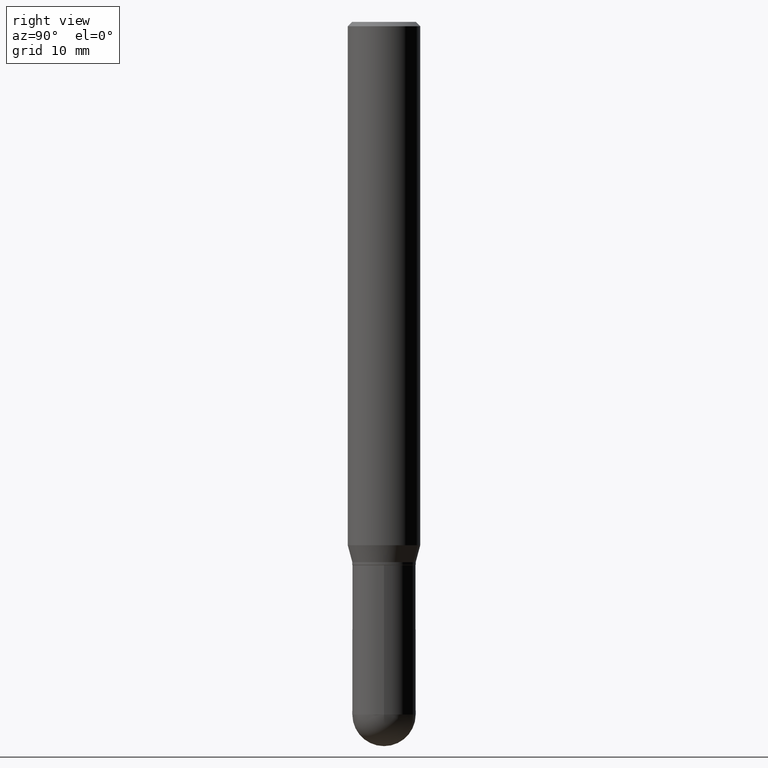
[diagram: clean part render]
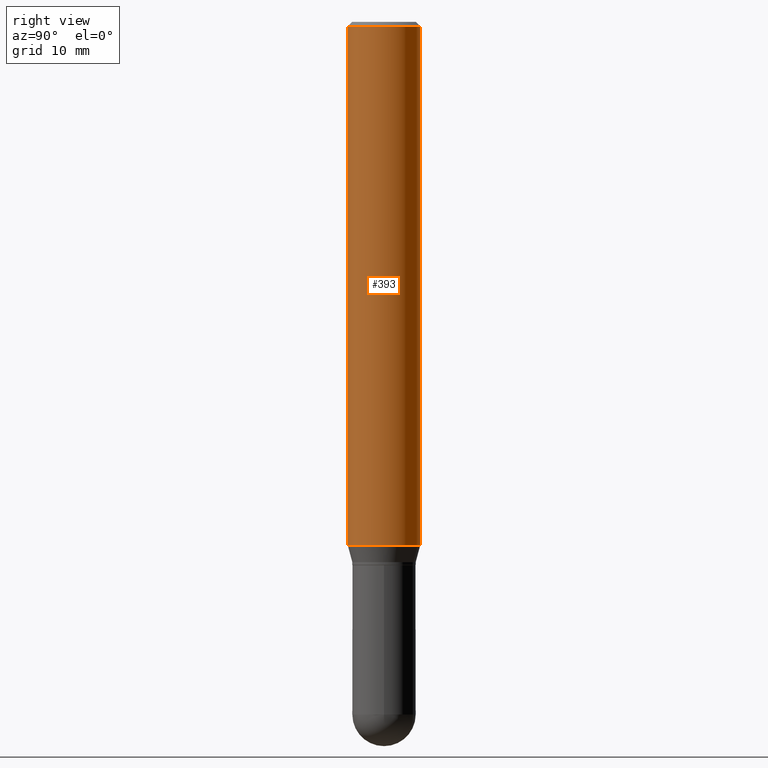
[diagram: same view with one face highlighted and labeled with its STEP entity id]
A machine part, right view. The second image highlights one B-rep face of the part: STEP entity #393.
In plain terms, the highlighted cylindrical surface (edge-blend (fillet) strip) has radius 3.175 mm, axis along (-0, 0, 1).
Its self-contained STEP definition (entity closure, byte-faithful):
#1 = VECTOR ( 'NONE', #14, 39.37007874015748143 ) ;
#14 = DIRECTION ( 'NONE',  ( -2.445484535067430768E-29, 3.491458814188467188E-15, 1.000000000000000000 ) ) ;
#28 = DIRECTION ( 'NONE',  ( -6.982962677686265922E-15, -1.000000000000000000, 3.483106191921935554E-15 ) ) ;
#58 = CARTESIAN_POINT ( 'NONE',  ( 8.881784197001690141E-16, 0.1249999999999936579, -1.806780007401925792 ) ) ;
#63 = CARTESIAN_POINT ( 'NONE',  ( 3.668226802601146923E-31, -5.237188221282701522E-17, -0.01499999999999999944 ) ) ;
#75 = EDGE_LOOP ( 'NONE', ( #238, #81, #320, #208 ) ) ;
#76 = CYLINDRICAL_SURFACE ( 'NONE', #376, 0.1250000000000000000 ) ;
#81 = ORIENTED_EDGE ( 'NONE', *, *, #317, .T. ) ;
#83 = AXIS2_PLACEMENT_3D ( 'NONE', #476, #483, #375 ) ;
#88 = CARTESIAN_POINT ( 'NONE',  ( -8.728703347107391626E-16, -0.1250000000000063283, -1.806780007401924681 ) ) ;
#89 = LINE ( 'NONE', #381, #1 ) ;
#109 = EDGE_CURVE ( 'NONE', #113, #321, #315, .T. ) ;
#113 = VERTEX_POINT ( 'NONE', #88 ) ;
#135 = LINE ( 'NONE', #304, #184 ) ;
#156 = VERTEX_POINT ( 'NONE', #165 ) ;
#163 = FACE_OUTER_BOUND ( 'NONE', #75, .T. ) ;
#165 = CARTESIAN_POINT ( 'NONE',  ( 8.881784197001696058E-16, 0.1249999999999999584, -0.01500000000000043486 ) ) ;
#184 = VECTOR ( 'NONE', #420, 39.37007874015748143 ) ;
#208 = ORIENTED_EDGE ( 'NONE', *, *, #413, .F. ) ;
#228 = VERTEX_POINT ( 'NONE', #372 ) ;
#238 = ORIENTED_EDGE ( 'NONE', *, *, #109, .T. ) ;
#263 = CIRCLE ( 'NONE', #419, 0.1250000000000000000 ) ;
#304 = CARTESIAN_POINT ( 'NONE',  ( 8.881784197001251337E-16, 0.1250000000000000000, -4.364323517735584479E-16 ) ) ;
#315 = CIRCLE ( 'NONE', #83, 0.1250000000000000000 ) ;
#317 = EDGE_CURVE ( 'NONE', #321, #156, #135, .T. ) ;
#320 = ORIENTED_EDGE ( 'NONE', *, *, #365, .F. ) ;
#321 = VERTEX_POINT ( 'NONE', #58 ) ;
#322 = CARTESIAN_POINT ( 'NONE',  ( 0.000000000000000000, 0.000000000000000000, 0.000000000000000000 ) ) ;
#327 = DIRECTION ( 'NONE',  ( -2.445484535067431049E-29, 3.491458814188467583E-15, 1.000000000000000000 ) ) ;
#351 = DIRECTION ( 'NONE',  ( -2.445484535067431049E-29, 3.491458814188467583E-15, 1.000000000000000000 ) ) ;
#365 = EDGE_CURVE ( 'NONE', #228, #156, #263, .T. ) ;
#372 = CARTESIAN_POINT ( 'NONE',  ( -8.728703347107828458E-16, -0.1250000000000000555, -0.01499999999999956403 ) ) ;
#375 = DIRECTION ( 'NONE',  ( -6.982962677686265922E-15, -1.000000000000000000, 4.370956789862821150E-15 ) ) ;
#376 = AXIS2_PLACEMENT_3D ( 'NONE', #322, #327, #484 ) ;
#381 = CARTESIAN_POINT ( 'NONE',  ( -8.728703347107832402E-16, -0.1250000000000000000, 4.364323517735584479E-16 ) ) ;
#393 = ADVANCED_FACE ( 'NONE', ( #163 ), #76, .T. ) ;
#413 = EDGE_CURVE ( 'NONE', #113, #228, #89, .T. ) ;
#419 = AXIS2_PLACEMENT_3D ( 'NONE', #63, #351, #28 ) ;
#420 = DIRECTION ( 'NONE',  ( -2.445484535067430768E-29, 3.491458814188467188E-15, 1.000000000000000000 ) ) ;
#476 = CARTESIAN_POINT ( 'NONE',  ( 4.418452566370426579E-29, -6.308297982142956369E-15, -1.806780007401925348 ) ) ;
#483 = DIRECTION ( 'NONE',  ( -2.445484535067431049E-29, 3.491458814188467583E-15, 1.000000000000000000 ) ) ;
#484 = DIRECTION ( 'NONE',  ( -6.982962677686265922E-15, -1.000000000000000000, 3.491458814188467583E-15 ) ) ;